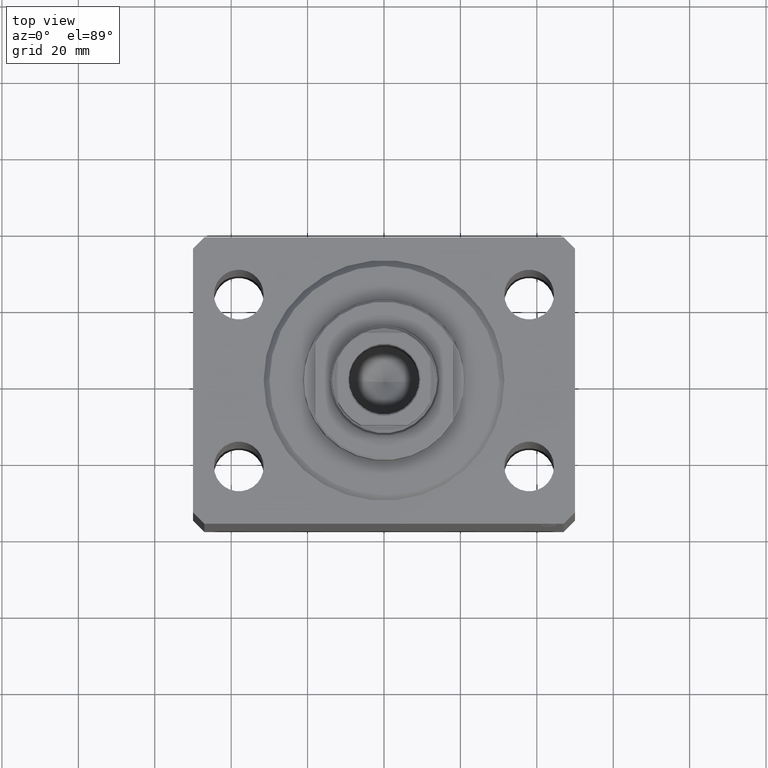
[diagram: clean part render]
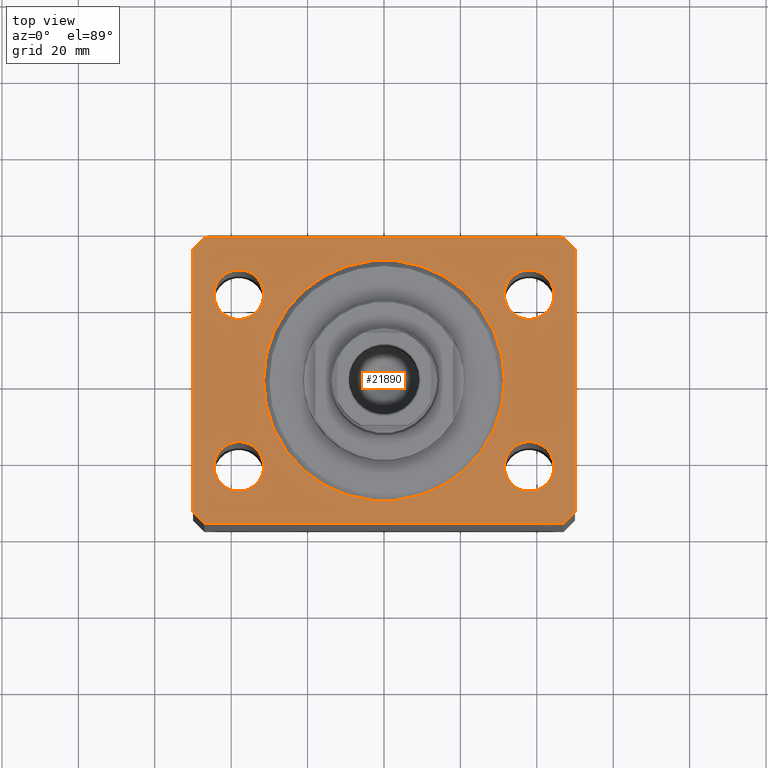
[diagram: same view with one face highlighted and labeled with its STEP entity id]
A machine part, top view. The second image highlights one B-rep face of the part: STEP entity #21890.
In plain terms, the highlighted planar face has unit normal (0, 0, 1).
Its self-contained STEP definition (entity closure, byte-faithful):
#990 = DIRECTION ( 'NONE',  ( 0.000000000000000000, 0.000000000000000000, 1.000000000000000000 ) ) ;
#1097 = CARTESIAN_POINT ( 'NONE',  ( -50.00000000000000000, -34.50000000000000000, 0.000000000000000000 ) ) ;
#1140 = DIRECTION ( 'NONE',  ( 1.000000000000000000, 0.000000000000000000, -0.000000000000000000 ) ) ;
#1202 = CIRCLE ( 'NONE', #7670, 6.499999999999999112 ) ;
#1725 = AXIS2_PLACEMENT_3D ( 'NONE', #32484, #40150, #35873 ) ;
#1937 = CARTESIAN_POINT ( 'NONE',  ( -50.00000000000000000, -34.50000000000000000, 0.000000000000000000 ) ) ;
#2266 = LINE ( 'NONE', #2934, #23032 ) ;
#2471 = LINE ( 'NONE', #12162, #8943 ) ;
#2488 = DIRECTION ( 'NONE',  ( 0.7071067811865483499, 0.7071067811865466846, 0.000000000000000000 ) ) ;
#2506 = DIRECTION ( 'NONE',  ( 2.011273595335428326E-16, -1.000000000000000000, 0.000000000000000000 ) ) ;
#2934 = CARTESIAN_POINT ( 'NONE',  ( 47.00000000000000000, -37.50000000000000711, 0.000000000000000000 ) ) ;
#2935 = VERTEX_POINT ( 'NONE', #18668 ) ;
#3019 = CARTESIAN_POINT ( 'NONE',  ( 0.000000000000000000, 0.000000000000000000, 0.000000000000000000 ) ) ;
#3048 = CARTESIAN_POINT ( 'NONE',  ( 38.00000000000000000, 22.49999999999998934, 0.000000000000000000 ) ) ;
#3476 = ORIENTED_EDGE ( 'NONE', *, *, #10413, .F. ) ;
#3886 = VECTOR ( 'NONE', #25121, 1000.000000000000000 ) ;
#4168 = ORIENTED_EDGE ( 'NONE', *, *, #9973, .F. ) ;
#4312 = EDGE_CURVE ( 'NONE', #40191, #10203, #11372, .T. ) ;
#4377 = CARTESIAN_POINT ( 'NONE',  ( -38.00000000000000000, 22.49999999999999645, 0.000000000000000000 ) ) ;
#4522 = DIRECTION ( 'NONE',  ( 0.000000000000000000, 0.000000000000000000, 1.000000000000000000 ) ) ;
#4707 = DIRECTION ( 'NONE',  ( 7.441712302741091634E-15, 1.000000000000000000, 0.000000000000000000 ) ) ;
#5151 = EDGE_CURVE ( 'NONE', #7344, #8793, #16161, .T. ) ;
#5419 = ORIENTED_EDGE ( 'NONE', *, *, #5151, .F. ) ;
#5542 = DIRECTION ( 'NONE',  ( 1.000000000000000000, 0.000000000000000000, 0.000000000000000000 ) ) ;
#5746 = EDGE_CURVE ( 'NONE', #27440, #15977, #2471, .T. ) ;
#5821 = ORIENTED_EDGE ( 'NONE', *, *, #33142, .F. ) ;
#5936 = CARTESIAN_POINT ( 'NONE',  ( 44.50000000000000000, 22.49999999999998934, 0.000000000000000000 ) ) ;
#5954 = DIRECTION ( 'NONE',  ( 1.000000000000000000, 0.000000000000000000, 0.000000000000000000 ) ) ;
#6234 = AXIS2_PLACEMENT_3D ( 'NONE', #3019, #9563, #5954 ) ;
#6236 = ORIENTED_EDGE ( 'NONE', *, *, #8901, .F. ) ;
#6481 = EDGE_CURVE ( 'NONE', #10480, #18207, #42082, .T. ) ;
#6503 = AXIS2_PLACEMENT_3D ( 'NONE', #35410, #4522, #1140 ) ;
#6625 = CARTESIAN_POINT ( 'NONE',  ( -44.50000000000000000, 22.49999999999999645, 0.000000000000000000 ) ) ;
#6864 = ORIENTED_EDGE ( 'NONE', *, *, #13492, .F. ) ;
#7344 = VERTEX_POINT ( 'NONE', #42815 ) ;
#7555 = CARTESIAN_POINT ( 'NONE',  ( 44.49999999999999289, -22.50000000000000000, 0.000000000000000000 ) ) ;
#7670 = AXIS2_PLACEMENT_3D ( 'NONE', #3048, #37337, #5542 ) ;
#7902 = PLANE ( 'NONE',  #6503 ) ;
#8390 = DIRECTION ( 'NONE',  ( 0.000000000000000000, 0.000000000000000000, 1.000000000000000000 ) ) ;
#8793 = VERTEX_POINT ( 'NONE', #20397 ) ;
#8901 = EDGE_CURVE ( 'NONE', #19359, #11106, #31208, .T. ) ;
#8943 = VECTOR ( 'NONE', #26368, 1000.000000000000000 ) ;
#9139 = CARTESIAN_POINT ( 'NONE',  ( 38.00000000000000000, 22.49999999999998934, 0.000000000000000000 ) ) ;
#9354 = DIRECTION ( 'NONE',  ( 0.000000000000000000, 0.000000000000000000, 1.000000000000000000 ) ) ;
#9563 = DIRECTION ( 'NONE',  ( 0.000000000000000000, 0.000000000000000000, 1.000000000000000000 ) ) ;
#9593 = EDGE_CURVE ( 'NONE', #22153, #42794, #31868, .T. ) ;
#9973 = EDGE_CURVE ( 'NONE', #2935, #32265, #22617, .T. ) ;
#10203 = VERTEX_POINT ( 'NONE', #15251 ) ;
#10413 = EDGE_CURVE ( 'NONE', #15574, #10901, #14016, .T. ) ;
#10480 = VERTEX_POINT ( 'NONE', #32552 ) ;
#10860 = VECTOR ( 'NONE', #4707, 1000.000000000000000 ) ;
#10901 = VERTEX_POINT ( 'NONE', #32493 ) ;
#11081 = AXIS2_PLACEMENT_3D ( 'NONE', #18885, #32393, #25404 ) ;
#11106 = VERTEX_POINT ( 'NONE', #20108 ) ;
#11282 = CIRCLE ( 'NONE', #36508, 6.499999999999999112 ) ;
#11372 = LINE ( 'NONE', #28281, #3886 ) ;
#11655 = VECTOR ( 'NONE', #2506, 1000.000000000000000 ) ;
#11686 = CARTESIAN_POINT ( 'NONE',  ( 50.00000000000000000, -34.50000000000000711, 0.000000000000000000 ) ) ;
#11727 = FACE_BOUND ( 'NONE', #40633, .T. ) ;
#12162 = CARTESIAN_POINT ( 'NONE',  ( -47.00000000000001421, 37.50000000000000000, 0.000000000000000000 ) ) ;
#13492 = EDGE_CURVE ( 'NONE', #10901, #15574, #22717, .T. ) ;
#13934 = EDGE_LOOP ( 'NONE', ( #5821, #4168 ) ) ;
#14016 = CIRCLE ( 'NONE', #27696, 6.499999999999999112 ) ;
#14391 = CARTESIAN_POINT ( 'NONE',  ( 37.99999999999999289, -22.50000000000000000, 0.000000000000000000 ) ) ;
#14841 = CARTESIAN_POINT ( 'NONE',  ( 50.00000000000051870, 34.49999999999995026, 0.000000000000000000 ) ) ;
#15151 = CARTESIAN_POINT ( 'NONE',  ( 37.99999999999999289, -22.50000000000000000, 0.000000000000000000 ) ) ;
#15251 = CARTESIAN_POINT ( 'NONE',  ( 47.00000000000000000, -37.50000000000000711, 0.000000000000000000 ) ) ;
#15472 = DIRECTION ( 'NONE',  ( 0.000000000000000000, 0.000000000000000000, 1.000000000000000000 ) ) ;
#15569 = CIRCLE ( 'NONE', #6234, 31.50000000000000000 ) ;
#15574 = VERTEX_POINT ( 'NONE', #6625 ) ;
#15579 = EDGE_CURVE ( 'NONE', #8793, #7344, #15569, .T. ) ;
#15977 = VERTEX_POINT ( 'NONE', #21863 ) ;
#16059 = DIRECTION ( 'NONE',  ( 1.000000000000000000, 0.000000000000000000, 0.000000000000000000 ) ) ;
#16161 = CIRCLE ( 'NONE', #11081, 31.50000000000000000 ) ;
#17033 = ORIENTED_EDGE ( 'NONE', *, *, #6481, .F. ) ;
#17209 = EDGE_CURVE ( 'NONE', #18207, #10480, #1202, .T. ) ;
#18185 = CARTESIAN_POINT ( 'NONE',  ( -37.99999999999999289, -22.50000000000000000, 0.000000000000000000 ) ) ;
#18207 = VERTEX_POINT ( 'NONE', #5936 ) ;
#18277 = ORIENTED_EDGE ( 'NONE', *, *, #15579, .F. ) ;
#18668 = CARTESIAN_POINT ( 'NONE',  ( -44.49999999999999289, -22.50000000000000000, 0.000000000000000000 ) ) ;
#18885 = CARTESIAN_POINT ( 'NONE',  ( 0.000000000000000000, 0.000000000000000000, 0.000000000000000000 ) ) ;
#18995 = EDGE_CURVE ( 'NONE', #42794, #27440, #36898, .T. ) ;
#19006 = ORIENTED_EDGE ( 'NONE', *, *, #22121, .F. ) ;
#19067 = ORIENTED_EDGE ( 'NONE', *, *, #43168, .T. ) ;
#19359 = VERTEX_POINT ( 'NONE', #7555 ) ;
#19728 = ORIENTED_EDGE ( 'NONE', *, *, #5746, .T. ) ;
#20108 = CARTESIAN_POINT ( 'NONE',  ( 31.49999999999999289, -22.50000000000000000, 0.000000000000000000 ) ) ;
#20397 = CARTESIAN_POINT ( 'NONE',  ( -31.50000000000000000, 3.857637417314162689E-15, 0.000000000000000000 ) ) ;
#20694 = ORIENTED_EDGE ( 'NONE', *, *, #35724, .T. ) ;
#21075 = CARTESIAN_POINT ( 'NONE',  ( -47.00000000000001421, 37.50000000000000000, 0.000000000000000000 ) ) ;
#21091 = DIRECTION ( 'NONE',  ( 0.000000000000000000, 0.000000000000000000, 1.000000000000000000 ) ) ;
#21174 = DIRECTION ( 'NONE',  ( 1.000000000000000000, 0.000000000000000000, 0.000000000000000000 ) ) ;
#21446 = FACE_BOUND ( 'NONE', #22896, .T. ) ;
#21863 = CARTESIAN_POINT ( 'NONE',  ( -50.00000000000001421, 34.50000000000000000, 0.000000000000000000 ) ) ;
#21890 = ADVANCED_FACE ( 'NONE', ( #22112, #28867, #11727, #38793, #21446, #25478 ), #7902, .T. ) ;
#22008 = AXIS2_PLACEMENT_3D ( 'NONE', #4377, #990, #28495 ) ;
#22112 = FACE_BOUND ( 'NONE', #27971, .T. ) ;
#22121 = EDGE_CURVE ( 'NONE', #11106, #19359, #28086, .T. ) ;
#22153 = VERTEX_POINT ( 'NONE', #14841 ) ;
#22617 = CIRCLE ( 'NONE', #1725, 6.499999999999999112 ) ;
#22699 = CARTESIAN_POINT ( 'NONE',  ( 47.00000000000056843, 37.49999999999999289, 0.000000000000000000 ) ) ;
#22717 = CIRCLE ( 'NONE', #22008, 6.499999999999999112 ) ;
#22896 = EDGE_LOOP ( 'NONE', ( #6864, #3476 ) ) ;
#23032 = VECTOR ( 'NONE', #2488, 1000.000000000000000 ) ;
#23102 = DIRECTION ( 'NONE',  ( 1.000000000000000000, 0.000000000000000000, 0.000000000000000000 ) ) ;
#23526 = CARTESIAN_POINT ( 'NONE',  ( 47.00000000000056843, 37.49999999999999289, 0.000000000000000000 ) ) ;
#24059 = VECTOR ( 'NONE', #42465, 1000.000000000000114 ) ;
#24676 = DIRECTION ( 'NONE',  ( 1.000000000000000000, 0.000000000000000000, 0.000000000000000000 ) ) ;
#25121 = DIRECTION ( 'NONE',  ( 1.000000000000000000, -1.476360405086644309E-16, 0.000000000000000000 ) ) ;
#25404 = DIRECTION ( 'NONE',  ( 1.000000000000000000, 0.000000000000000000, 0.000000000000000000 ) ) ;
#25432 = ORIENTED_EDGE ( 'NONE', *, *, #4312, .T. ) ;
#25478 = FACE_OUTER_BOUND ( 'NONE', #43799, .T. ) ;
#26368 = DIRECTION ( 'NONE',  ( -0.7071067811865483499, -0.7071067811865466846, 0.000000000000000000 ) ) ;
#27187 = CARTESIAN_POINT ( 'NONE',  ( -38.00000000000000000, 22.49999999999999645, 0.000000000000000000 ) ) ;
#27440 = VERTEX_POINT ( 'NONE', #21075 ) ;
#27696 = AXIS2_PLACEMENT_3D ( 'NONE', #27187, #21091, #24676 ) ;
#27971 = EDGE_LOOP ( 'NONE', ( #5419, #18277 ) ) ;
#28086 = CIRCLE ( 'NONE', #36011, 6.499999999999999112 ) ;
#28281 = CARTESIAN_POINT ( 'NONE',  ( -47.00000000000000000, -37.49999999999999289, 0.000000000000000000 ) ) ;
#28495 = DIRECTION ( 'NONE',  ( 1.000000000000000000, 0.000000000000000000, 0.000000000000000000 ) ) ;
#28780 = ORIENTED_EDGE ( 'NONE', *, *, #41247, .T. ) ;
#28867 = FACE_BOUND ( 'NONE', #13934, .T. ) ;
#31208 = CIRCLE ( 'NONE', #43477, 6.499999999999999112 ) ;
#31314 = DIRECTION ( 'NONE',  ( 0.000000000000000000, 0.000000000000000000, 1.000000000000000000 ) ) ;
#31692 = CARTESIAN_POINT ( 'NONE',  ( 50.00000000000000000, -34.50000000000000711, 0.000000000000000000 ) ) ;
#31868 = LINE ( 'NONE', #42027, #24059 ) ;
#32265 = VERTEX_POINT ( 'NONE', #32892 ) ;
#32393 = DIRECTION ( 'NONE',  ( 0.000000000000000000, 0.000000000000000000, 1.000000000000000000 ) ) ;
#32484 = CARTESIAN_POINT ( 'NONE',  ( -37.99999999999999289, -22.50000000000000000, 0.000000000000000000 ) ) ;
#32493 = CARTESIAN_POINT ( 'NONE',  ( -31.50000000000000000, 22.49999999999999645, 0.000000000000000000 ) ) ;
#32552 = CARTESIAN_POINT ( 'NONE',  ( 31.50000000000000000, 22.49999999999998934, 0.000000000000000000 ) ) ;
#32718 = LINE ( 'NONE', #40158, #11655 ) ;
#32892 = CARTESIAN_POINT ( 'NONE',  ( -31.49999999999999289, -22.50000000000000000, 0.000000000000000000 ) ) ;
#33142 = EDGE_CURVE ( 'NONE', #32265, #2935, #11282, .T. ) ;
#33303 = CARTESIAN_POINT ( 'NONE',  ( -47.00000000000000000, -37.49999999999999289, 0.000000000000000000 ) ) ;
#34177 = AXIS2_PLACEMENT_3D ( 'NONE', #9139, #9354, #23102 ) ;
#35302 = DIRECTION ( 'NONE',  ( 0.7071067811865491270, -0.7071067811865459074, 0.000000000000000000 ) ) ;
#35410 = CARTESIAN_POINT ( 'NONE',  ( 0.000000000000000000, 0.000000000000000000, 0.000000000000000000 ) ) ;
#35592 = LINE ( 'NONE', #11686, #10860 ) ;
#35724 = EDGE_CURVE ( 'NONE', #36433, #22153, #35592, .T. ) ;
#35837 = VERTEX_POINT ( 'NONE', #1097 ) ;
#35873 = DIRECTION ( 'NONE',  ( 1.000000000000000000, 0.000000000000000000, 0.000000000000000000 ) ) ;
#35982 = DIRECTION ( 'NONE',  ( 1.000000000000000000, 0.000000000000000000, 0.000000000000000000 ) ) ;
#36011 = AXIS2_PLACEMENT_3D ( 'NONE', #14391, #31314, #21174 ) ;
#36433 = VERTEX_POINT ( 'NONE', #31692 ) ;
#36508 = AXIS2_PLACEMENT_3D ( 'NONE', #18185, #15472, #35982 ) ;
#36571 = ORIENTED_EDGE ( 'NONE', *, *, #18995, .T. ) ;
#36768 = EDGE_CURVE ( 'NONE', #10203, #36433, #2266, .T. ) ;
#36861 = ORIENTED_EDGE ( 'NONE', *, *, #17209, .F. ) ;
#36898 = LINE ( 'NONE', #22699, #40123 ) ;
#37337 = DIRECTION ( 'NONE',  ( 0.000000000000000000, 0.000000000000000000, 1.000000000000000000 ) ) ;
#38793 = FACE_BOUND ( 'NONE', #40631, .T. ) ;
#38905 = LINE ( 'NONE', #1937, #43281 ) ;
#39669 = ORIENTED_EDGE ( 'NONE', *, *, #36768, .T. ) ;
#40123 = VECTOR ( 'NONE', #42993, 1000.000000000000000 ) ;
#40150 = DIRECTION ( 'NONE',  ( 0.000000000000000000, 0.000000000000000000, 1.000000000000000000 ) ) ;
#40158 = CARTESIAN_POINT ( 'NONE',  ( -50.00000000000001421, 34.50000000000000000, 0.000000000000000000 ) ) ;
#40191 = VERTEX_POINT ( 'NONE', #33303 ) ;
#40631 = EDGE_LOOP ( 'NONE', ( #36861, #17033 ) ) ;
#40633 = EDGE_LOOP ( 'NONE', ( #6236, #19006 ) ) ;
#41247 = EDGE_CURVE ( 'NONE', #35837, #40191, #38905, .T. ) ;
#42027 = CARTESIAN_POINT ( 'NONE',  ( 50.00000000000051870, 34.49999999999995026, 0.000000000000000000 ) ) ;
#42082 = CIRCLE ( 'NONE', #34177, 6.499999999999999112 ) ;
#42465 = DIRECTION ( 'NONE',  ( -0.7071067811865361374, 0.7071067811865588970, 0.000000000000000000 ) ) ;
#42542 = ORIENTED_EDGE ( 'NONE', *, *, #9593, .T. ) ;
#42794 = VERTEX_POINT ( 'NONE', #23526 ) ;
#42815 = CARTESIAN_POINT ( 'NONE',  ( 31.50000000000000000, 0.000000000000000000, 0.000000000000000000 ) ) ;
#42993 = DIRECTION ( 'NONE',  ( -1.000000000000000000, 7.381802025433175941E-17, 0.000000000000000000 ) ) ;
#43168 = EDGE_CURVE ( 'NONE', #15977, #35837, #32718, .T. ) ;
#43281 = VECTOR ( 'NONE', #35302, 1000.000000000000114 ) ;
#43477 = AXIS2_PLACEMENT_3D ( 'NONE', #15151, #8390, #16059 ) ;
#43799 = EDGE_LOOP ( 'NONE', ( #36571, #19728, #19067, #28780, #25432, #39669, #20694, #42542 ) ) ;